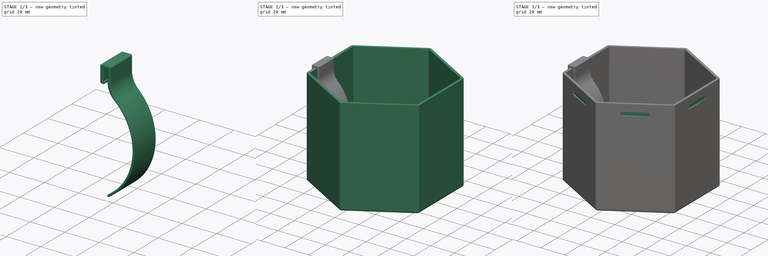
[diagram: build sequence overview — one tinted view per stage of 3, left to right]
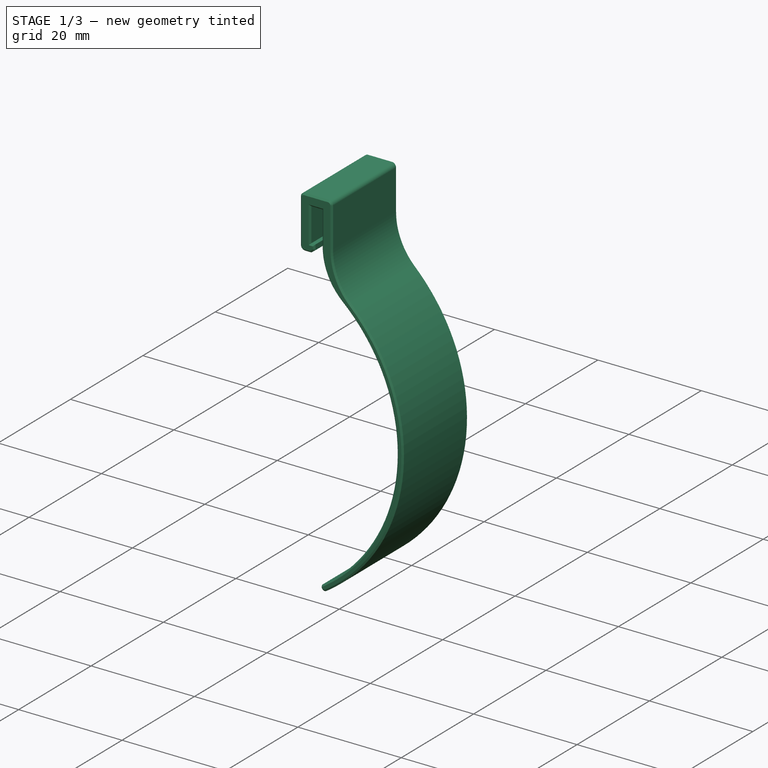
[diagram: stage 1 of 3 — iso view after this stage's code; geometry added in this stage tinted green]
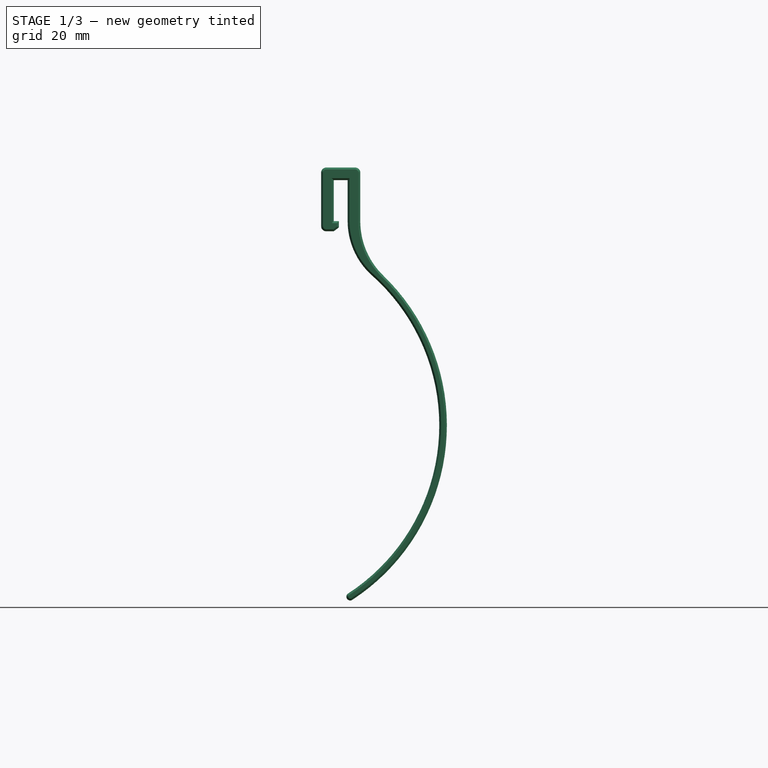
[diagram: stage 1 of 3 — front view after this stage's code; geometry added in this stage tinted green]
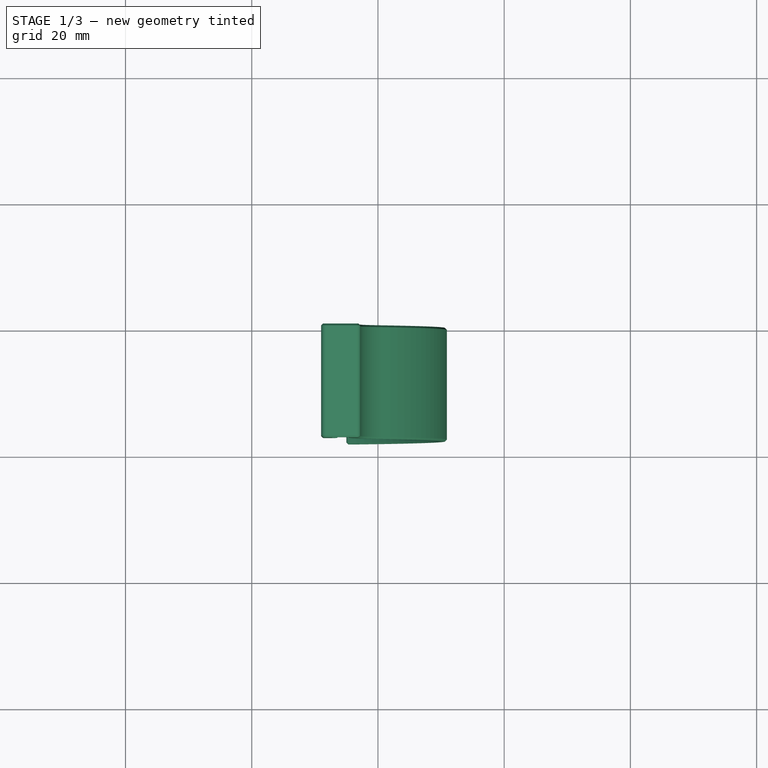
[diagram: stage 1 of 3 — top view after this stage's code; geometry added in this stage tinted green]
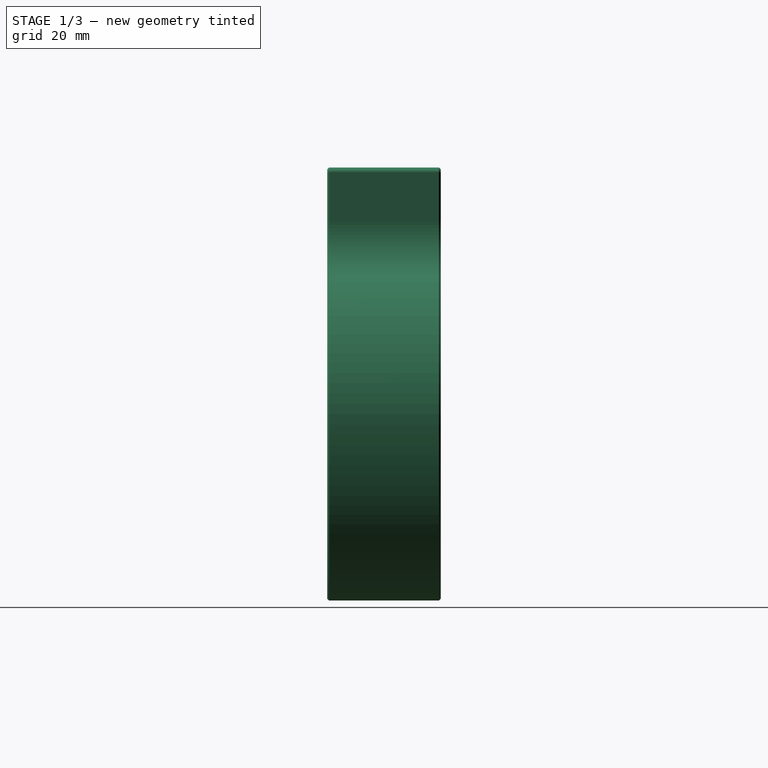
[diagram: stage 1 of 3 — right view after this stage's code; geometry added in this stage tinted green]
FCSTD DOCUMENT  (FreeCAD 0.22R38314 (Git))
Label: cup holder
License: All rights reserved
LicenseURL: http://en.wikipedia.org/wiki/All_rights_reserved
objects: Sketcher::SketchObject×4, PartDesign::Body×3, PartDesign::Pad×2, PartDesign::Thickness×1, PartDesign::Pocket×1, PartDesign::PolarPattern×1, PartDesign::Chamfer×1, Spreadsheet::Sheet×1
note: 24 computed .brp shape members not serialized (recipe doc carries the construction recipe); baked Part::Feature solids carry a one-line shape summary decoded from their .brp

FEATURE [Sketcher::SketchObject] Sketch001
  AttachmentSupport = -> [XZ_Plane]
  FullyConstrained = true
  MapMode = 5
  Placement = pos=(0,0,0) rot=(1,0,0;1.5708rad)
  sketch-geometry (28):
    g0: LineSegment StartX=-47 StartY=80 StartZ=0 EndX=-47 EndY=0 EndZ=0
    g1: LineSegment StartX=-47 StartY=0 StartZ=0 EndX=-45 EndY=0 EndZ=0
    g2: LineSegment StartX=-45 StartY=0 StartZ=0 EndX=-45 EndY=80 EndZ=0
    g3: LineSegment StartX=-45 StartY=80 StartZ=0 EndX=-47 EndY=80 EndZ=0
    g4: LineSegment StartX=-47 StartY=73.5 StartZ=0 EndX=-47 EndY=80 EndZ=0
    g5: LineSegment StartX=-47 StartY=80 StartZ=0 EndX=-44.8 EndY=80 EndZ=0
    g6: LineSegment StartX=-44.8 StartY=80 StartZ=0 EndX=-44.8 EndY=73.5 EndZ=0
    g7: ArcOfCircle CenterX=-62.081 CenterY=41.1504 CenterZ=0 NormalX=0 NormalY=0 NormalZ=1 AngleXU=0 Radius=31.8 StartAngle=5.28963 EndAngle=7.12692
    g8: ArcOfCircle CenterX=-62.081 CenterY=41.1504 CenterZ=0 NormalX=0 NormalY=0 NormalZ=1 AngleXU=0 Radius=33 StartAngle=5.28963 EndAngle=7.08538
    g9: LineSegment StartX=-47 StartY=71.9 StartZ=0 EndX=-48.2 EndY=71.9 EndZ=0
    g10: LineSegment StartX=-49 StartY=72.7 StartZ=0 EndX=-49 EndY=81.2 EndZ=0
    g11: LineSegment StartX=-48.2 StartY=82 StartZ=0 EndX=-43.6 EndY=82 EndZ=0
    g12: LineSegment StartX=-42.8 StartY=81.2 StartZ=0 EndX=-42.8 EndY=73.5 EndZ=0
    g13: ArcOfCircle CenterX=-44.4 CenterY=14 CenterZ=0 NormalX=0 NormalY=0 NormalZ=1 AngleXU=0 Radius=0.6 StartAngle=2.14803 EndAngle=5.28963
    g14: GeomPoint X=-45 Y=14 Z=0
    g15: ArcOfCircle CenterX=-30.8 CenterY=73.5 CenterZ=0 NormalX=0 NormalY=0 NormalZ=1 AngleXU=0 Radius=12 StartAngle=3.14159 EndAngle=3.94378
    g16: ArcOfCircle CenterX=-33.3015 CenterY=73.5 CenterZ=0 NormalX=0 NormalY=0 NormalZ=1 AngleXU=0 Radius=11.4985 StartAngle=3.14159 EndAngle=3.98533
    g17: ArcOfCircle CenterX=-48.2 CenterY=81.2 CenterZ=0 NormalX=0 NormalY=0 NormalZ=1 AngleXU=0 Radius=0.8 StartAngle=1.5708 EndAngle=3.14159
    g18: GeomPoint X=-49 Y=82 Z=0
    g19: ArcOfCircle CenterX=-43.6 CenterY=81.2 CenterZ=0 NormalX=0 NormalY=0 NormalZ=1 AngleXU=0 Radius=0.8 StartAngle=-6.2e-15 EndAngle=1.5708
    g20: GeomPoint X=-42.8 Y=82 Z=0
    g21: ArcOfCircle CenterX=-48.2 CenterY=72.7 CenterZ=0 NormalX=0 NormalY=0 NormalZ=1 AngleXU=0 Radius=0.8 StartAngle=3.14159 EndAngle=4.71239
    g22: GeomPoint X=-49 Y=71.9 Z=0
    g23: GeomPoint X=-47 Y=71.9 Z=0
    g24: LineSegment StartX=-46.2 StartY=73.5 StartZ=0 EndX=-47 EndY=73.5 EndZ=0
    g25: GeomPoint X=-47 Y=71.9 Z=0
    g26: LineSegment StartX=-46.2 StartY=73.5 StartZ=0 EndX=-46.2 EndY=72.5 EndZ=0
    g27: LineSegment StartX=-46.2 StartY=72.5 StartZ=0 EndX=-47 EndY=71.9 EndZ=0
  constraints (73):
    c: Coincident(g0,g1)
    c: Coincident(g1,g2)
    c: Coincident(g2,g3)
    c: Coincident(g3,g0)
    c: Vertical(g0)
    c: Vertical(g2)
    c: Horizontal(g1)
    c: Horizontal(g3)
    c: Distance(g0,g2) = 2
    c: Distance(g1,g3) = 80
    c: PointOnObject(g0,g-1)
    c: DistanceX(g1,g-1) = 45
    c: Vertical(g4)
    c: Coincident(g4,g5)
    c: Horizontal(g5)
    c: Coincident(g5,g6)
    c: Vertical(g6)
    c: DistanceX(g5,g5) = 2.2
    c: PointOnObject(g5,g3)
    c: Coincident(g8,g7)
    c: Horizontal(g9)
    c: Vertical(g10)
    c: Horizontal(g11)
    c: Vertical(g12)
    c: DistanceY(g2,g20) = 2
    c: Tangent(g13,g8) = -1.5708
    c: Tangent(g13,g7) = 1.5708
    c: PointOnObject(g14,g13)
    c: Horizontal(g13,g14)
    c: PointOnObject(g14,g2)
    c: DistanceY(g1,g14) = 14
    c: Tangent(g12,g15) = -1.5708
    c: Tangent(g8,g15) = 1.5708
    c: Radius(g15) = 12
    c: Tangent(g6,g16) = -1.5708
    c: Tangent(g7,g16) = 1.5708
    c: DistanceX(g2,g5) = 0.2
    c: DistanceX(g6,g12) = 2
    c: PointOnObject(g18,g11)
    c: PointOnObject(g18,g10)
    c: Tangent(g11,g17) = 1.5708
    c: Tangent(g10,g17) = 1.5708
    c: PointOnObject(g20,g11)
    c: PointOnObject(g20,g12)
    c: Tangent(g11,g19) = 1.5708
    c: Tangent(g12,g19) = 1.5708
    c: Equal(g17,g19)
    c: Radius(g17) = 0.8
    c: PointOnObject(g22,g10)
    c: PointOnObject(g22,g9)
    c: Tangent(g10,g21) = 1.5708
    c: Tangent(g9,g21) = 1.5708
    c: PointOnObject(g23,g9)
    c: PointOnObject(g23,g4)
    c: Horizontal(g4,g6)
    c: Horizontal(g12,g6)
    c: DistanceX(g10,g4) = 2
    c: Vertical(g25,g4)
    c: DistanceY(g25,g4) = 1.6
    c: Coincident(g24,g4)
    c: Horizontal(g24)
    c: Equal(g21,g19)
    c: DistanceY(g4,g4) = 6.5  'hook_distance'
    c: DistanceX(g24,g24) = 0.8
    c: Coincident(g24,g26)
    c: Vertical(g26)
    c: DistanceY(g26,g26) = 1
    c: Coincident(g26,g27)
    c: Coincident(g27,g23)
    c: Coincident(g9,g25)
    c: DistanceY(g9,g0) = 8.1
    c: Radius(g8) = 33
    c: Radius(g7) = 31.8
FEATURE [PartDesign::Pad] Pad001
  Direction = (0,-1,2e-16)
  Length = 18
  Length2 = 10
  Placement = pos=(0,0,0) rot=(1,0,0;1.5708rad)
  Profile = -> Sketch001
  ReferenceAxis = -> Sketch001 [N_Axis]
  Suppressed = false
  Type = 0
FEATURE [PartDesign::Body] Body001  label="Body"
  AllowCompound = false
  Group = -> [Sketch,Pad,Thickness,Sketch002,Pocket,PolarPattern]
  Origin = -> Origin001
  Tip = -> PolarPattern
FEATURE [PartDesign::Chamfer] Chamfer
  Angle = 45
  Base = -> Pad001 [Face20,Face19]
  BaseFeature = -> Pad001
  ChamferType = 0
  FlipDirection = false
  Placement = pos=(0,0,0) rot=(1,0,0;1.5708rad)
  Size = 0.3
  Size2 = 1
  SupportTransform = false
  Suppressed = false
  UseAllEdges = false
FEATURE [PartDesign::Body] Body  label="wings"
  AllowCompound = false
  Group = -> [Sketch001,Pad001,Chamfer]
  Origin = -> Origin
  Tip = -> Chamfer
FEATURE [Spreadsheet::Sheet] Spreadsheet  label="q"
  cells = A3='cup height; B3(cup_height)=70; A4='cup wall; B4(cup_wall)=2; A5='cup diameter; B5(cup_diameter)=90; A7='hook height; B7(hook_height)=8; A8='hook width; B8(hook_width)=18; A9='hook wall; B9(hook_wall)=2; A10='hook tooth; B10(hook_tooth)=1; A11='hook margin; B11(hook_margin)=0.2; A13='spring radius; B13(spring_radius)=35; A14='spring width; B14(spring_width)==hook_width; A15='spring wall; B15(spring_wall)=1.2; A16='spring height; B16(spring_height)=40
FEATURE [Sketcher::SketchObject] Sketch003
  AttachmentSupport = -> [XZ_Plane002]
  FullyConstrained = false
  MapMode = 5
  Placement = pos=(0,0,0) rot=(1,0,0;1.5708rad)
  sketch-geometry (37):
    g0: LineSegment StartX=-47 StartY=73.5 StartZ=0 EndX=-47 EndY=80 EndZ=0
    g1: LineSegment StartX=-47 StartY=80 StartZ=0 EndX=-44.8 EndY=80 EndZ=0
    g2: LineSegment StartX=-44.8 StartY=80 StartZ=0 EndX=-44.8 EndY=73.5 EndZ=0
    g3: ArcOfCircle CenterX=-62.081 CenterY=41.1504 CenterZ=0 NormalX=0 NormalY=0 NormalZ=1 AngleXU=0 Radius=31.8 StartAngle=5.28963 EndAngle=7.12692
    g4: ArcOfCircle CenterX=-62.081 CenterY=41.1504 CenterZ=0 NormalX=0 NormalY=0 NormalZ=1 AngleXU=0 Radius=33 StartAngle=5.28963 EndAngle=7.08538
    g5: LineSegment StartX=-47 StartY=71.9 StartZ=0 EndX=-48.2 EndY=71.9 EndZ=0
    g6: LineSegment StartX=-49 StartY=72.7 StartZ=0 EndX=-49 EndY=81.2 EndZ=0
    g7: LineSegment StartX=-48.2 StartY=82 StartZ=0 EndX=-43.6 EndY=82 EndZ=0
    g8: LineSegment StartX=-42.8 StartY=81.2 StartZ=0 EndX=-42.8 EndY=73.5 EndZ=0
    g9: ArcOfCircle CenterX=-44.4 CenterY=14 CenterZ=0 NormalX=0 NormalY=0 NormalZ=1 AngleXU=0 Radius=0.6 StartAngle=2.14803 EndAngle=5.28963
    g10: GeomPoint X=-45 Y=14 Z=0
    g11: ArcOfCircle CenterX=-30.8 CenterY=73.5 CenterZ=0 NormalX=0 NormalY=0 NormalZ=1 AngleXU=0 Radius=12 StartAngle=3.14159 EndAngle=3.94378
    g12: ArcOfCircle CenterX=-33.3015 CenterY=73.5 CenterZ=0 NormalX=0 NormalY=0 NormalZ=1 AngleXU=0 Radius=11.4985 StartAngle=3.14159 EndAngle=3.98533
    g13: ArcOfCircle CenterX=-48.2 CenterY=81.2 CenterZ=0 NormalX=0 NormalY=0 NormalZ=1 AngleXU=0 Radius=0.8 StartAngle=1.5708 EndAngle=3.14159
    g14: GeomPoint X=-49 Y=82 Z=0
    g15: ArcOfCircle CenterX=-43.6 CenterY=81.2 CenterZ=0 NormalX=0 NormalY=0 NormalZ=1 AngleXU=0 Radius=0.8 StartAngle=-6.2e-15 EndAngle=1.5708
    g16: GeomPoint X=-42.8 Y=82 Z=0
    g17: ArcOfCircle CenterX=-48.2 CenterY=72.7 CenterZ=0 NormalX=0 NormalY=0 NormalZ=1 AngleXU=0 Radius=0.8 StartAngle=3.14159 EndAngle=4.71239
    g18: GeomPoint X=-49 Y=71.9 Z=0
    g19: GeomPoint X=-47 Y=71.9 Z=0
    g20: LineSegment StartX=-46.2 StartY=73.5 StartZ=0 EndX=-47 EndY=73.5 EndZ=0
    g21: GeomPoint X=-47 Y=71.9 Z=0
    g22: LineSegment StartX=-46.2 StartY=73.5 StartZ=0 EndX=-46.2 EndY=72.5 EndZ=0
    g23: LineSegment StartX=-46.2 StartY=72.5 StartZ=0 EndX=-47 EndY=71.9 EndZ=0
    g24: LineSegment StartX=-23.0844 StartY=74.6529 StartZ=0 EndX=-23.0844 EndY=80.6438 EndZ=0
    g25: LineSegment StartX=-23.0844 StartY=80.6438 StartZ=0 EndX=-20.7974 EndY=80.6438 EndZ=0
    g26: LineSegment StartX=-20.7974 StartY=80.6438 StartZ=0 EndX=-20.7974 EndY=74.6281 EndZ=0
    g27: LineSegment StartX=-20.7974 StartY=74.6281 StartZ=0 EndX=-18.9827 EndY=74.6281 EndZ=0
    g28: LineSegment StartX=-18.9827 StartY=74.6281 StartZ=0 EndX=-18.9827 EndY=81.3399 EndZ=0
    g29: ArcOfCircle CenterX=-19.7837 CenterY=81.3399 CenterZ=0 NormalX=0 NormalY=0 NormalZ=1 AngleXU=0 Radius=0.800995 StartAngle=0 EndAngle=1.68832
    g30: LineSegment StartX=-19.8777 StartY=82.1354 StartZ=0 EndX=-23.7059 EndY=82.1354 EndZ=0
    g31: ArcOfCircle CenterX=-23.7059 CenterY=81.108 CenterZ=0 NormalX=0 NormalY=0 NormalZ=1 AngleXU=0 Radius=1.02734 StartAngle=1.5708 EndAngle=3.47878
    g32: LineSegment StartX=-24.6754 StartY=80.7681 StartZ=0 EndX=-24.6754 EndY=73.3354 EndZ=0
    g33: LineSegment StartX=-24.6754 StartY=73.3354 StartZ=0 EndX=-22.1398 EndY=73.3354 EndZ=0
    g34: LineSegment StartX=-22.1398 StartY=73.3354 StartZ=0 EndX=-22.1398 EndY=74.6529 EndZ=0
    g35: LineSegment StartX=-22.1398 StartY=74.6529 StartZ=0 EndX=-23.0844 EndY=74.6529 EndZ=0
    g36: LineSegment StartX=-16.5667 StartY=70.7288 StartZ=0 EndX=-14.7096 EndY=70.7288 EndZ=0
  constraints (78):
    c: Vertical(g0)
    c: Coincident(g0,g1)
    c: Horizontal(g1)
    c: Coincident(g1,g2)
    c: Vertical(g2)
    c: DistanceX(g1,g1) = 2.2
    c: Coincident(g4,g3)
    c: Horizontal(g5)
    c: Vertical(g6)
    c: Horizontal(g7)
    c: Vertical(g8)
    c: Tangent(g9,g4) = -1.5708
    c: Tangent(g9,g3) = 1.5708
    c: PointOnObject(g10,g9)
    c: Horizontal(g9,g10)
    c: Tangent(g8,g11) = -1.5708
    c: Tangent(g4,g11) = 1.5708
    c: Radius(g11) = 12
    c: Tangent(g2,g12) = -1.5708
    c: Tangent(g3,g12) = 1.5708
    c: DistanceX(g2,g8) = 2
    c: PointOnObject(g14,g7)
    c: PointOnObject(g14,g6)
    c: Tangent(g7,g13) = 1.5708
    c: Tangent(g6,g13) = 1.5708
    c: PointOnObject(g16,g7)
    c: PointOnObject(g16,g8)
    c: Tangent(g7,g15) = 1.5708
    c: Tangent(g8,g15) = 1.5708
    c: Equal(g13,g15)
    c: Radius(g13) = 0.8
    c: PointOnObject(g18,g6)
    c: PointOnObject(g18,g5)
    c: Tangent(g6,g17) = 1.5708
    c: Tangent(g5,g17) = 1.5708
    c: PointOnObject(g19,g5)
    c: PointOnObject(g19,g0)
    c: Horizontal(g0,g2)
    c: Horizontal(g8,g2)
    c: DistanceX(g6,g0) = 2
    c: Vertical(g21,g0)
    c: DistanceY(g21,g0) = 1.6
    c: Coincident(g20,g0)
    c: Horizontal(g20)
    c: Equal(g17,g15)
    c: DistanceY(g0,g0) = 6.5  'hook_distance'
    c: DistanceX(g20,g20) = 0.8
    c: Coincident(g20,g22)
    c: Vertical(g22)
    c: DistanceY(g22,g22) = 1
    c: Coincident(g22,g23)
    c: Coincident(g23,g19)
    c: Coincident(g5,g21)
    c: Radius(g4) = 33
    c: Radius(g3) = 31.8
    c: Vertical(g24)
    c: Coincident(g24,g25)
    c: Horizontal(g25)
    c: Coincident(g25,g26)
    c: Vertical(g26)
    c: Coincident(g26,g27)
    c: Horizontal(g27)
    c: Coincident(g27,g28)
    c: Vertical(g28)
    c: Tangent(g28,g29) = -1.5708
    c: Coincident(g29,g30)
    c: Horizontal(g30)
    c: Tangent(g30,g31) = -1.5708
    c: Coincident(g31,g32)
    c: Vertical(g32)
    c: Coincident(g32,g33)
    c: Horizontal(g33)
    c: Coincident(g33,g34)
    c: Vertical(g34)
    c: Coincident(g34,g35)
    c: Coincident(g35,g24)
    c: Horizontal(g35)
    c: Horizontal(g36)
FEATURE [PartDesign::Body] Body002
  AllowCompound = false
  Group = -> [Sketch003]
  Origin = -> Origin002
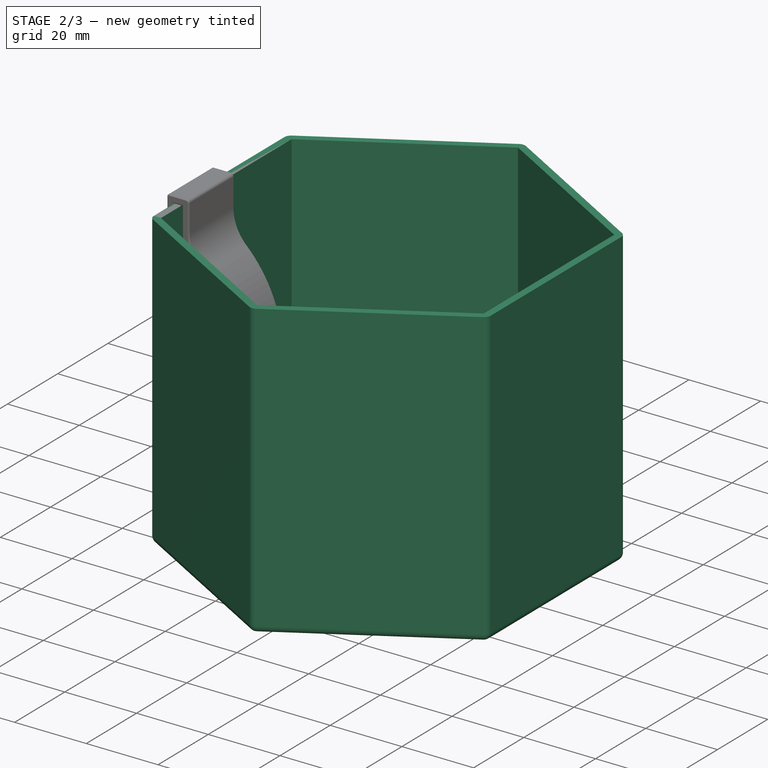
[diagram: stage 2 of 3 — iso view after this stage's code; geometry added in this stage tinted green]
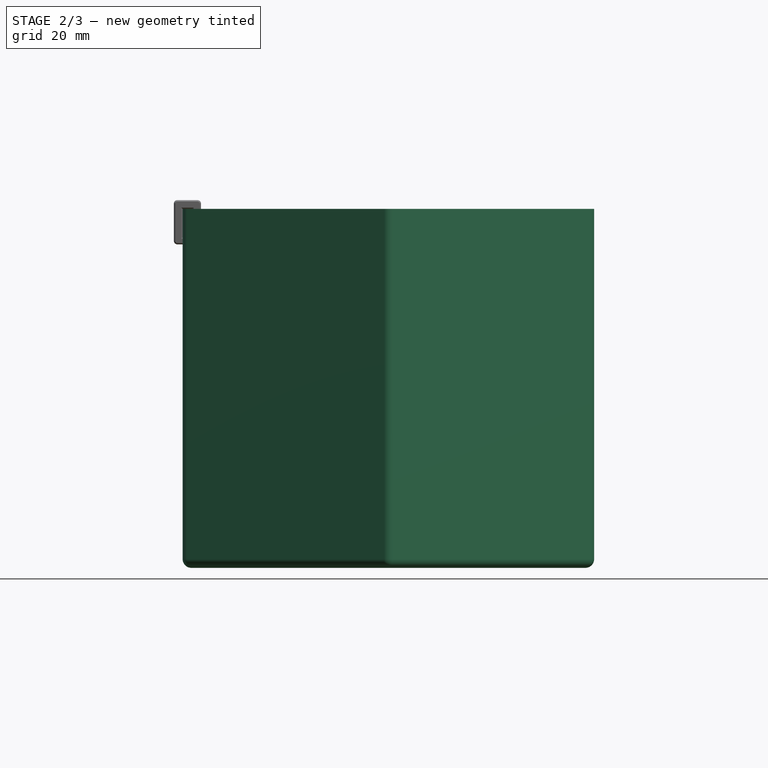
[diagram: stage 2 of 3 — front view after this stage's code; geometry added in this stage tinted green]
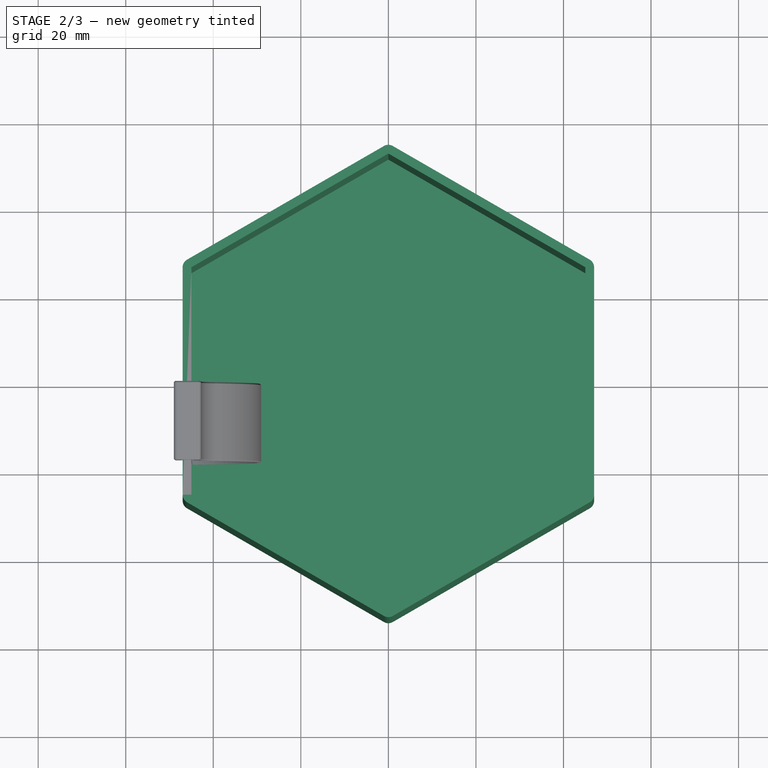
[diagram: stage 2 of 3 — top view after this stage's code; geometry added in this stage tinted green]
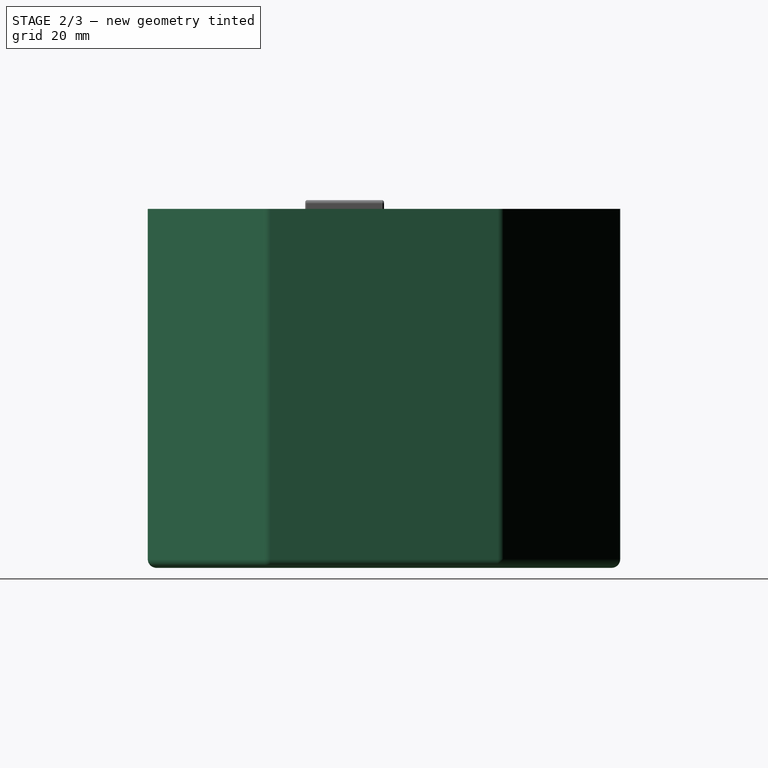
[diagram: stage 2 of 3 — right view after this stage's code; geometry added in this stage tinted green]
FEATURE [Sketcher::SketchObject] Sketch
  AttachmentSupport = -> [XY_Plane001]
  FullyConstrained = true
  MapMode = 5
  sketch-geometry (8):
    g0: LineSegment StartX=2.4e-15 StartY=-51.9615 StartZ=0 EndX=45 EndY=-25.9808 EndZ=0
    g1: LineSegment StartX=45 StartY=-25.9808 StartZ=0 EndX=45 EndY=25.9808 EndZ=0
    g2: LineSegment StartX=45 StartY=25.9808 StartZ=0 EndX=-2.541e-13 EndY=51.9615 EndZ=0
    g3: LineSegment StartX=-2.541e-13 StartY=51.9615 StartZ=0 EndX=-45 EndY=25.9808 EndZ=0
    g4: LineSegment StartX=-45 StartY=25.9808 StartZ=0 EndX=-45 EndY=-25.9808 EndZ=0
    g5: LineSegment StartX=-45 StartY=-25.9808 StartZ=0 EndX=2.4e-15 EndY=-51.9615 EndZ=0
    g6: Circle CenterX=0 CenterY=0 CenterZ=0 NormalX=0 NormalY=0 NormalZ=1 AngleXU=0 Radius=51.9615
    g7: Circle CenterX=0 CenterY=0 CenterZ=0 NormalX=0 NormalY=0 NormalZ=1 AngleXU=0 Radius=45
  constraints (18):
    c: Coincident(g0,g1)
    c: Coincident(g1,g2)
    c: Coincident(g2,g3)
    c: Coincident(g3,g4)
    c: Coincident(g4,g5)
    c: Coincident(g5,g0)
    c: Equal(g0, g1-g5) x5
    c: PointOnObject(g0,g6)
    c: PointOnObject(g1,g6)
    c: PointOnObject(g2,g6)
    c: PointOnObject(g3,g6)
    c: PointOnObject(g4,g6)
    c: PointOnObject(g5,g6)
    c: Coincident(g6,g-1)
    c: PointOnObject(g5,g-2)
    c: Coincident(g7,g6)
    c: Tangent(g7,g1)
    c: Diameter(g7) = 90
FEATURE [PartDesign::Pad] Pad
  Direction = (0,0,1)
  Length = 80
  Length2 = 10
  Profile = -> Sketch
  ReferenceAxis = -> Sketch [N_Axis]
  Suppressed = false
  Type = 0
FEATURE [PartDesign::Thickness] Thickness
  Base = -> Pad [Face8]
  BaseFeature = -> Pad
  Intersection = false
  Join = 0
  Mode = 0
  SupportTransform = false
  Suppressed = false
  Value = 2
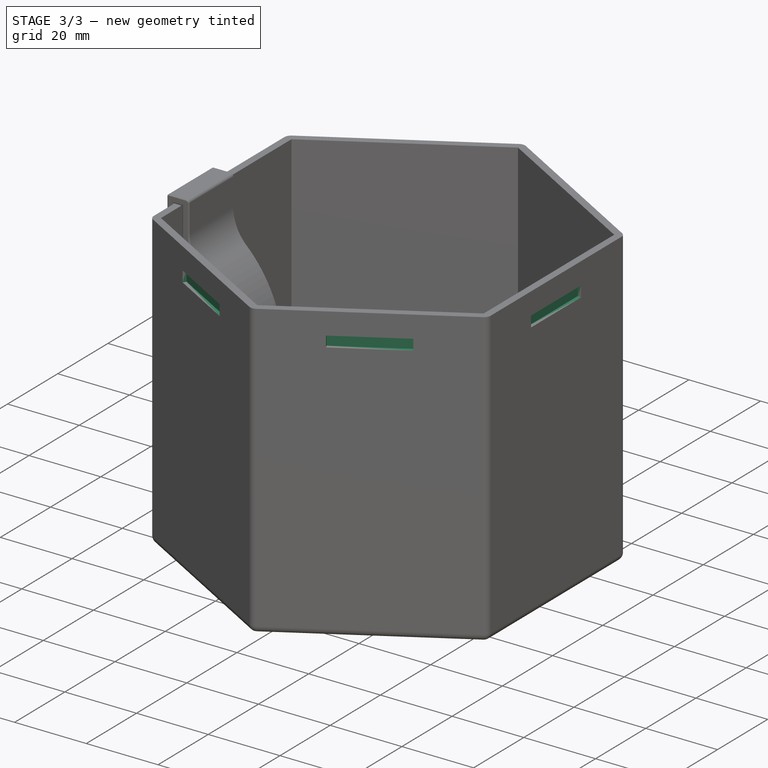
[diagram: stage 3 of 3 — iso view after this stage's code; geometry added in this stage tinted green]
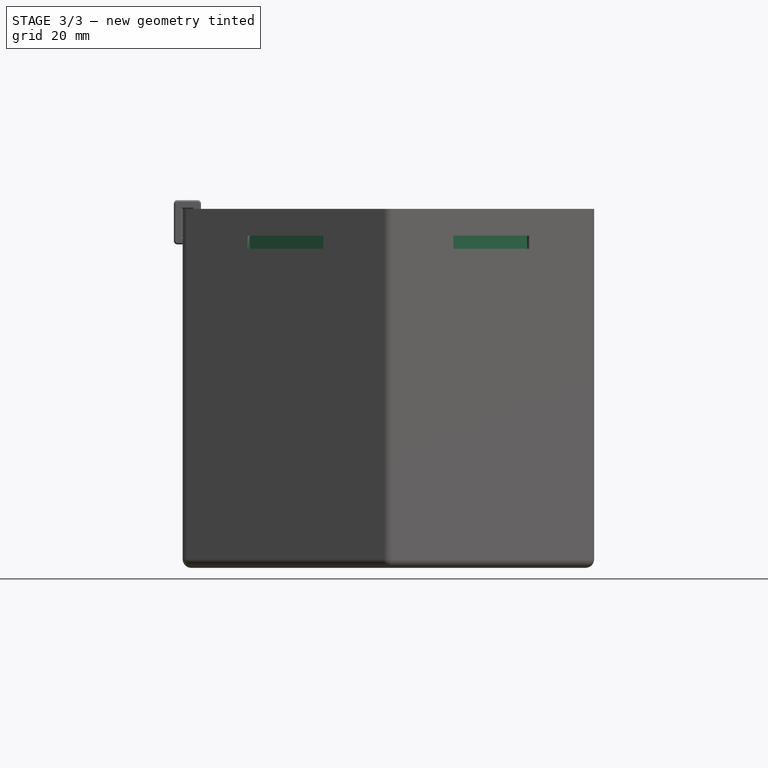
[diagram: stage 3 of 3 — front view after this stage's code; geometry added in this stage tinted green]
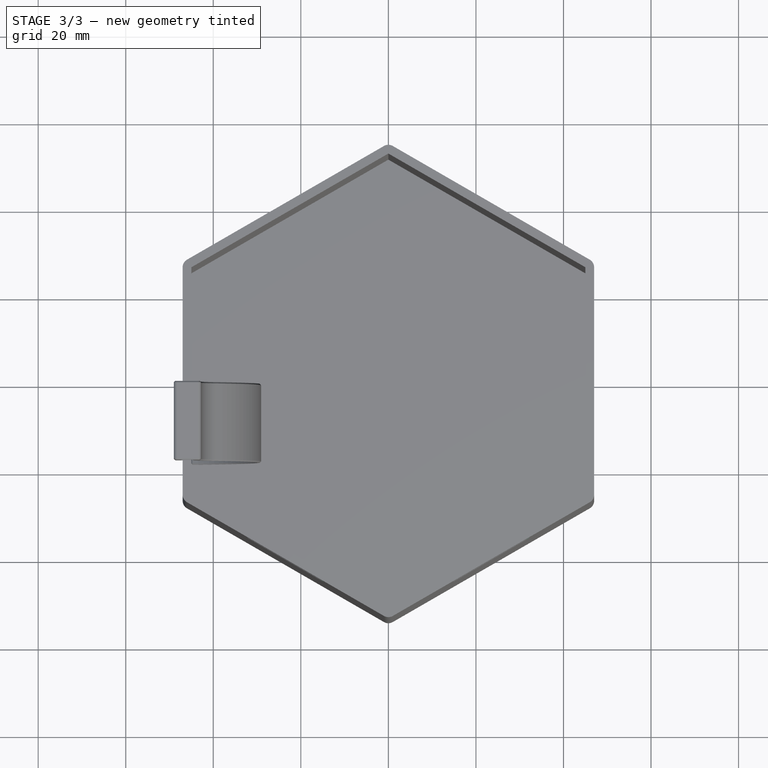
[diagram: stage 3 of 3 — top view after this stage's code; geometry added in this stage tinted green]
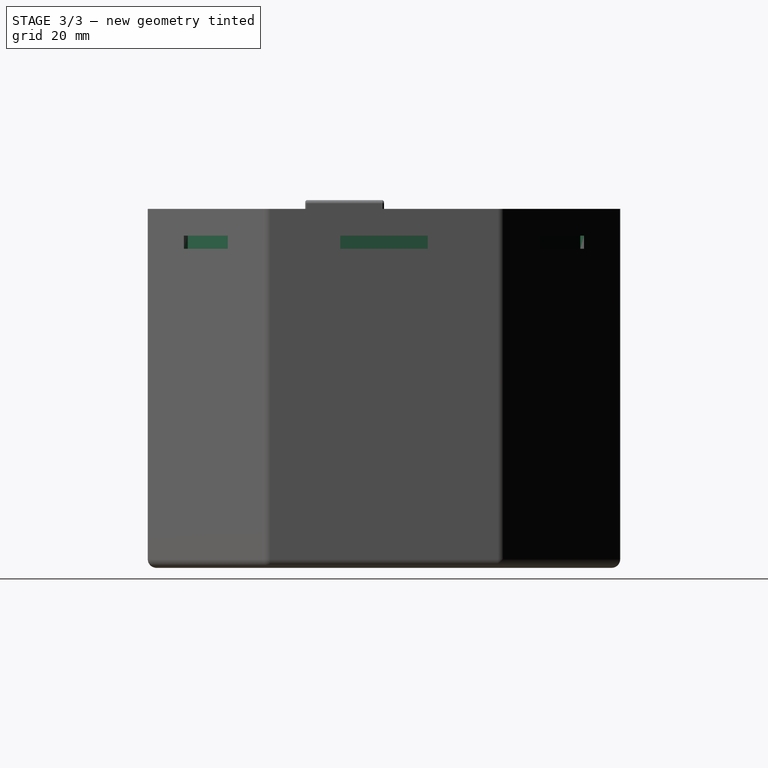
[diagram: stage 3 of 3 — right view after this stage's code; geometry added in this stage tinted green]
FEATURE [Sketcher::SketchObject] Sketch002
  AttachmentSupport = -> [Thickness]
  ExternalGeometry = -> [Thickness]
  FullyConstrained = true
  MapMode = 5
  Placement = pos=(-23.5,-40.7032,0) rot=(0.935113,-0.250563,-0.250563;1.63783rad)
  expr: Constraints[10] = Sketch001.Constraints.hook_distance - 0.4 mm
  sketch-geometry (4):
    g0: LineSegment StartX=-10 StartY=73.9 StartZ=0 EndX=-10 EndY=70.9 EndZ=0
    g1: LineSegment StartX=-10 StartY=70.9 StartZ=0 EndX=10 EndY=70.9 EndZ=0
    g2: LineSegment StartX=10 StartY=70.9 StartZ=0 EndX=10 EndY=73.9 EndZ=0
    g3: LineSegment StartX=10 StartY=73.9 StartZ=0 EndX=-10 EndY=73.9 EndZ=0
  constraints (11):
    c: Coincident(g0,g1)
    c: Coincident(g1,g2)
    c: Coincident(g2,g3)
    c: Coincident(g3,g0)
    c: Vertical(g0)
    c: Vertical(g2)
    c: Horizontal(g3)
    c: Symmetric(g1,g0,g-2)
    c: DistanceY(g2,g2) = 3
    c: DistanceX(g3,g3) = 20
    c: DistanceY(g2,g-3) = 6.1
FEATURE [PartDesign::Pocket] Pocket
  BaseFeature = -> Thickness
  Direction = (0.5,0.866025,-2e-16)
  Length = 1
  Length2 = 5
  Profile = -> Sketch002
  ReferenceAxis = -> Sketch002 [N_Axis]
  Suppressed = false
  Type = 0
FEATURE [PartDesign::PolarPattern] PolarPattern
  Angle = 360
  Axis = -> Z_Axis001
  BaseFeature = -> Pocket
  Mode = 0
  Occurrences = 6
  Offset = 120
  Originals = -> [Pocket]
  Suppressed = false
  TransformMode = 0
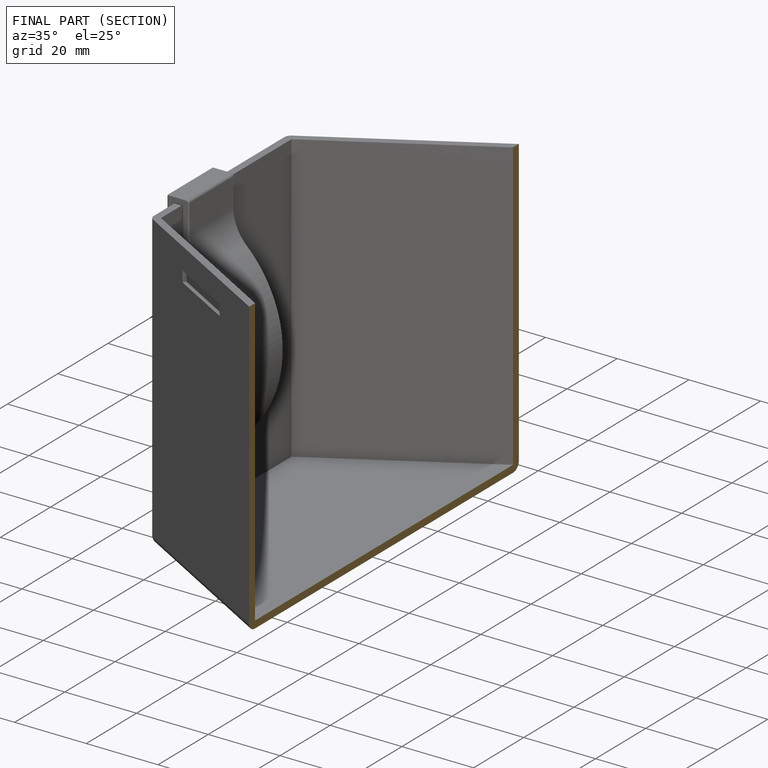
[diagram: finished part — half-section view (interior)]
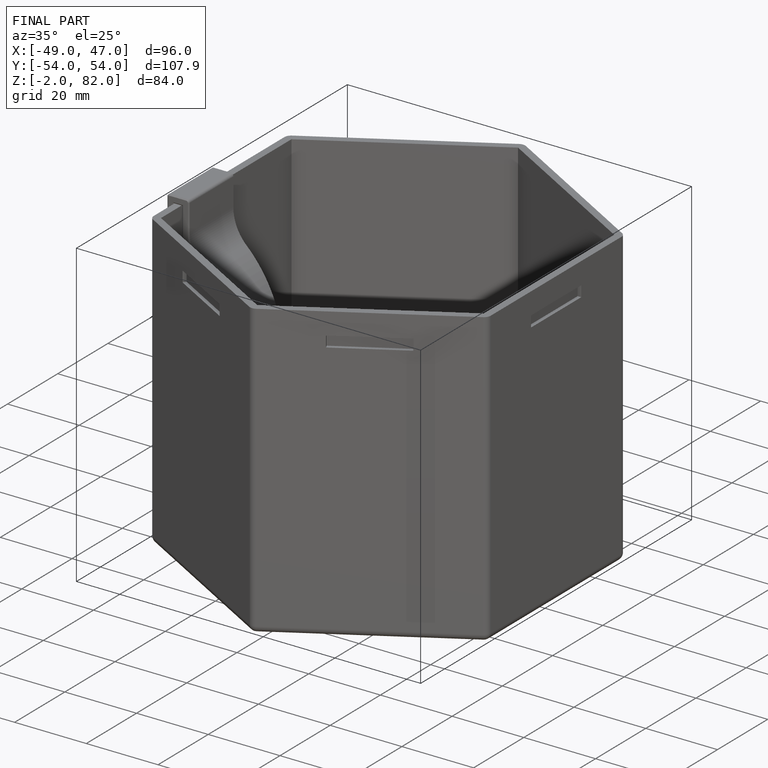
[diagram: finished part — iso view with bounding-box wireframe]
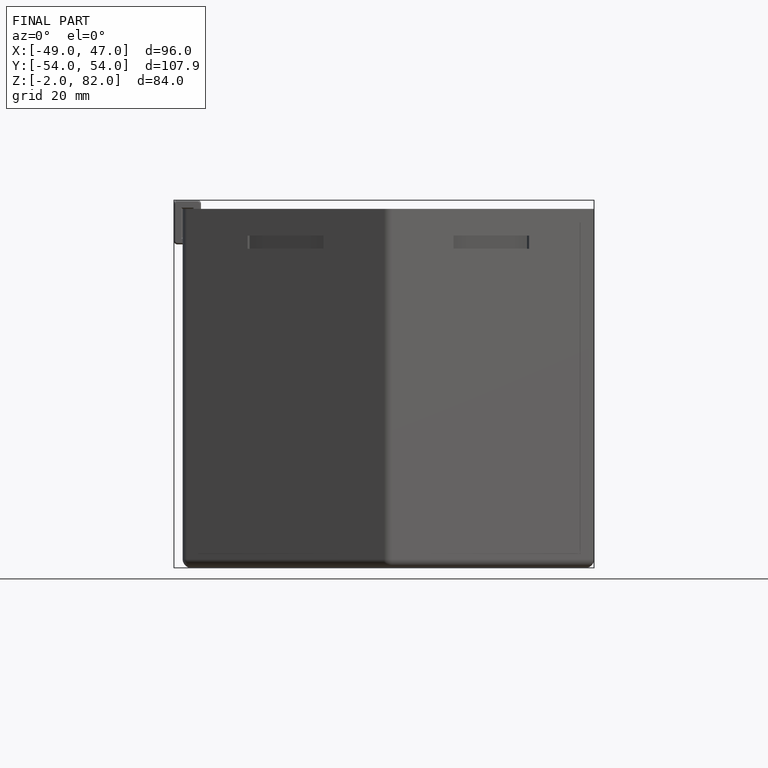
[diagram: finished part — front view with bounding-box wireframe]
